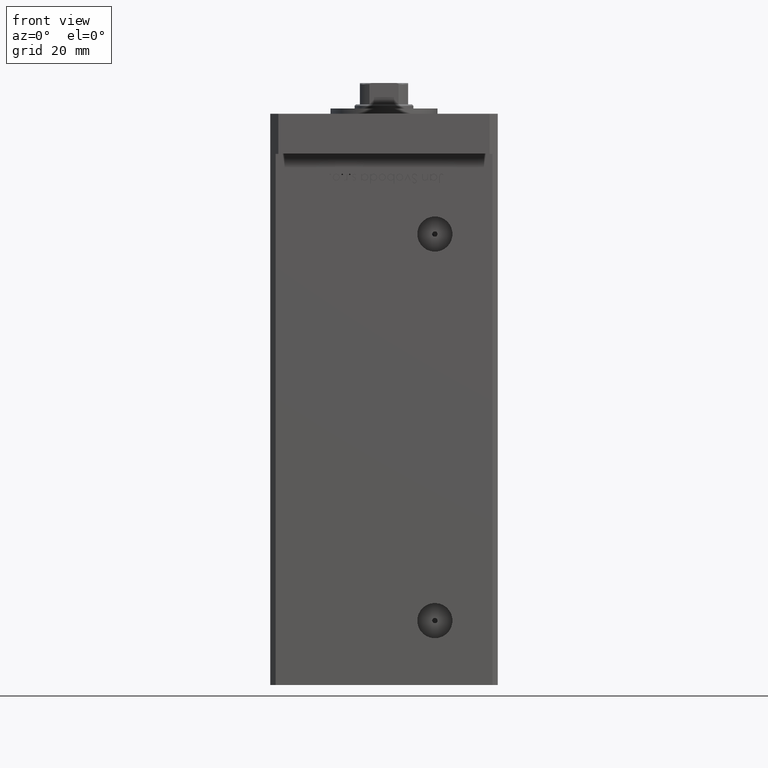
[diagram: clean part render]
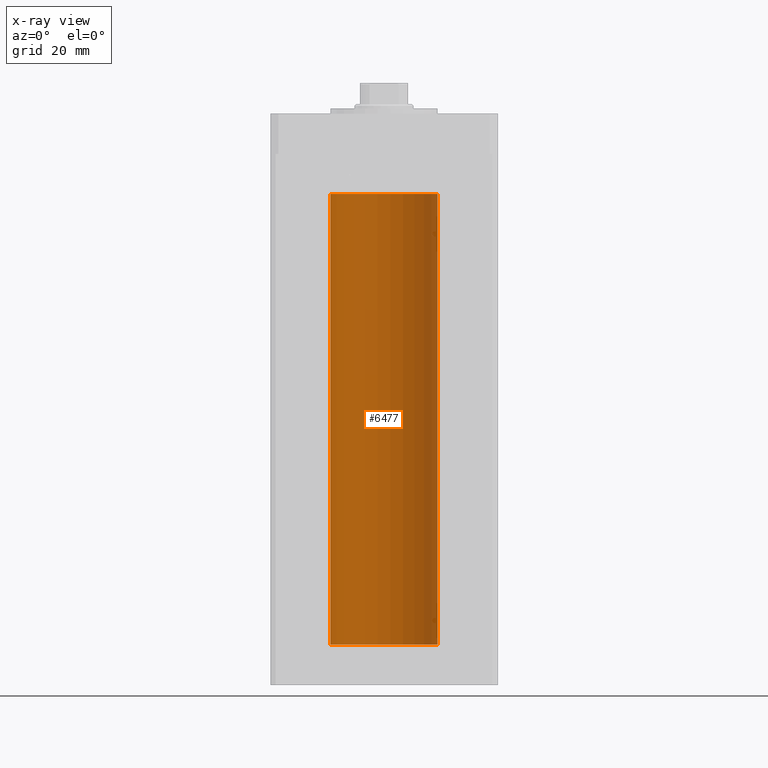
[diagram: x-ray — body ghosted, one internal face saturated and labeled with its STEP entity id]
A machine part, front view, then the same camera in x-ray: the body is ghosted and one INTERNAL B-rep face — a face not visible from any outside direction — is saturated and labeled: STEP entity #6477.
In plain terms, the highlighted cylindrical surface (partial cylindrical patch) has radius 20 mm, axis along (-0, -0, -1).
Its self-contained STEP definition (entity closure, byte-faithful):
#2395 = CARTESIAN_POINT ( 'NONE',  ( 20.00000000000000000, 2.449293598294706513E-15, 168.5000000000000000 ) ) ;
#3313 = ORIENTED_EDGE ( 'NONE', *, *, #41724, .F. ) ;
#4093 = CARTESIAN_POINT ( 'NONE',  ( 0.000000000000000000, 0.000000000000000000, 0.000000000000000000 ) ) ;
#4684 = EDGE_CURVE ( 'NONE', #18392, #48424, #36621, .T. ) ;
#5342 = ORIENTED_EDGE ( 'NONE', *, *, #20930, .T. ) ;
#6477 = ADVANCED_FACE ( 'NONE', ( #23783 ), #15641, .F. ) ;
#8652 = CARTESIAN_POINT ( 'NONE',  ( 20.00000000000000000, 2.449293598294706513E-15, 168.5000000000000000 ) ) ;
#9480 = CARTESIAN_POINT ( 'NONE',  ( -20.00000000000000000, 0.000000000000000000, 168.5000000000000000 ) ) ;
#9843 = CARTESIAN_POINT ( 'NONE',  ( -20.00000000000000000, 0.000000000000000000, 0.000000000000000000 ) ) ;
#11440 = DIRECTION ( 'NONE',  ( 1.000000000000000000, 0.000000000000000000, 0.000000000000000000 ) ) ;
#11571 = DIRECTION ( 'NONE',  ( -1.000000000000000000, 0.000000000000000000, 0.000000000000000000 ) ) ;
#11975 = DIRECTION ( 'NONE',  ( -0.000000000000000000, 0.000000000000000000, 1.000000000000000000 ) ) ;
#12375 = CARTESIAN_POINT ( 'NONE',  ( 0.000000000000000000, 0.000000000000000000, 168.5000000000000000 ) ) ;
#12633 = DIRECTION ( 'NONE',  ( 1.000000000000000000, 0.000000000000000000, 0.000000000000000000 ) ) ;
#13143 = AXIS2_PLACEMENT_3D ( 'NONE', #4093, #11975, #11440 ) ;
#13856 = EDGE_CURVE ( 'NONE', #46098, #47822, #19223, .T. ) ;
#15254 = CARTESIAN_POINT ( 'NONE',  ( 20.00000000000000000, 2.449293598294706513E-15, 0.000000000000000000 ) ) ;
#15641 = CYLINDRICAL_SURFACE ( 'NONE', #18720, 20.00000000000000000 ) ;
#17483 = ORIENTED_EDGE ( 'NONE', *, *, #4684, .T. ) ;
#17820 = CIRCLE ( 'NONE', #47283, 20.00000000000000000 ) ;
#18392 = VERTEX_POINT ( 'NONE', #9480 ) ;
#18720 = AXIS2_PLACEMENT_3D ( 'NONE', #48979, #44907, #11571 ) ;
#18962 = DIRECTION ( 'NONE',  ( -0.000000000000000000, -0.000000000000000000, -1.000000000000000000 ) ) ;
#19223 = LINE ( 'NONE', #2395, #49971 ) ;
#20930 = EDGE_CURVE ( 'NONE', #46098, #18392, #17820, .T. ) ;
#21323 = ORIENTED_EDGE ( 'NONE', *, *, #13856, .F. ) ;
#22673 = CIRCLE ( 'NONE', #13143, 20.00000000000000000 ) ;
#23783 = FACE_OUTER_BOUND ( 'NONE', #28214, .T. ) ;
#24324 = DIRECTION ( 'NONE',  ( -0.000000000000000000, 0.000000000000000000, 1.000000000000000000 ) ) ;
#24442 = CARTESIAN_POINT ( 'NONE',  ( -20.00000000000000000, 0.000000000000000000, 168.5000000000000000 ) ) ;
#26416 = VECTOR ( 'NONE', #53442, 1000.000000000000000 ) ;
#28214 = EDGE_LOOP ( 'NONE', ( #21323, #5342, #17483, #3313 ) ) ;
#36621 = LINE ( 'NONE', #24442, #26416 ) ;
#41724 = EDGE_CURVE ( 'NONE', #47822, #48424, #22673, .T. ) ;
#44907 = DIRECTION ( 'NONE',  ( -0.000000000000000000, -0.000000000000000000, -1.000000000000000000 ) ) ;
#46098 = VERTEX_POINT ( 'NONE', #8652 ) ;
#47283 = AXIS2_PLACEMENT_3D ( 'NONE', #12375, #24324, #12633 ) ;
#47822 = VERTEX_POINT ( 'NONE', #15254 ) ;
#48424 = VERTEX_POINT ( 'NONE', #9843 ) ;
#48979 = CARTESIAN_POINT ( 'NONE',  ( 0.000000000000000000, 0.000000000000000000, 168.5000000000000000 ) ) ;
#49971 = VECTOR ( 'NONE', #18962, 1000.000000000000000 ) ;
#53442 = DIRECTION ( 'NONE',  ( -0.000000000000000000, -0.000000000000000000, -1.000000000000000000 ) ) ;